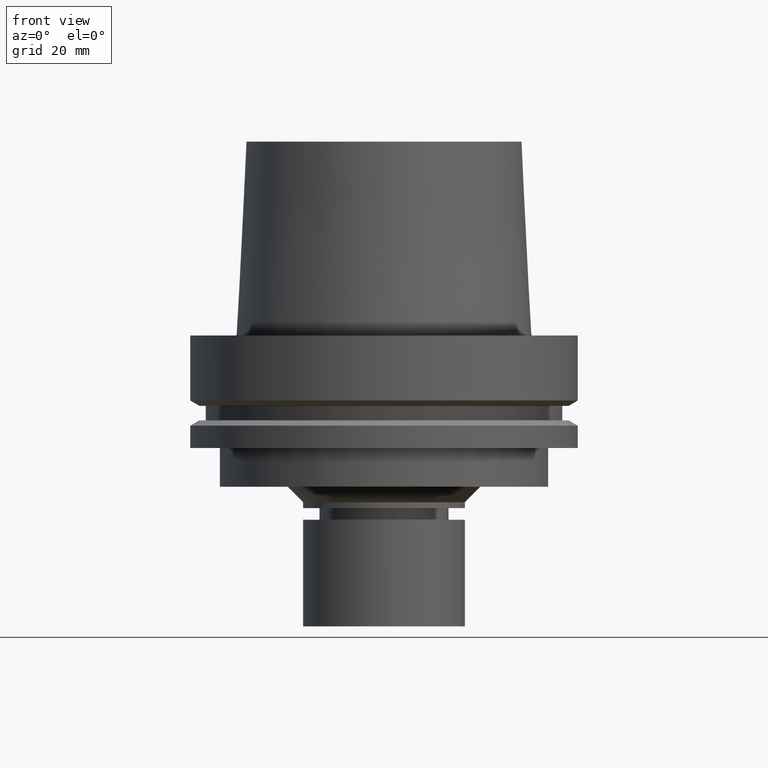
[diagram: clean part render]
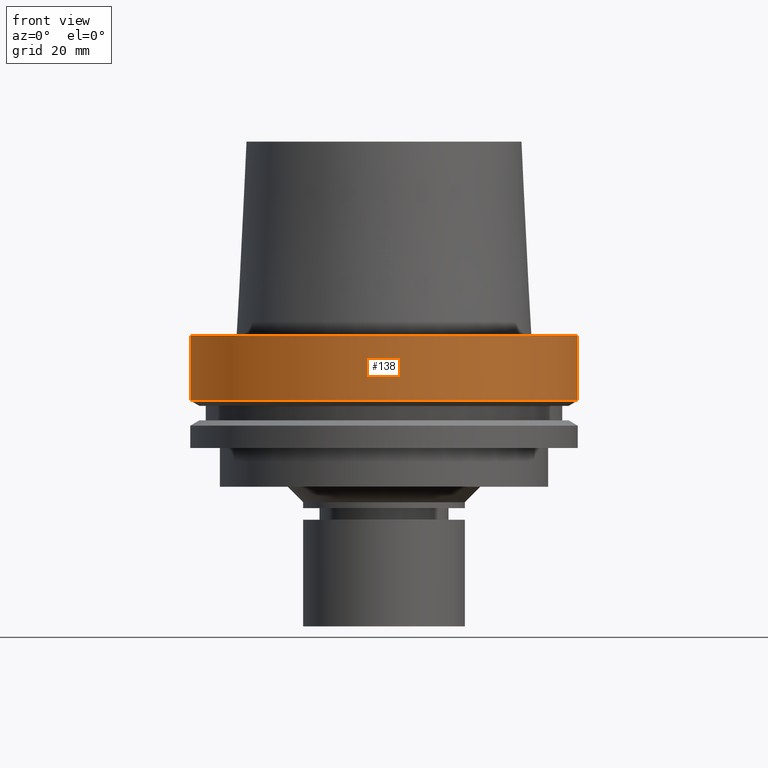
[diagram: same view with one face highlighted and labeled with its STEP entity id]
A machine part, front view. The second image highlights one B-rep face of the part: STEP entity #138.
In plain terms, the highlighted cylindrical surface (bore or boss wall) has radius 50 mm, axis along (0, 0, -1).
Its self-contained STEP definition (entity closure, byte-faithful):
#91=EDGE_CURVE('Unnamed[1]',#237,#237,#238,.T.);
#102=EDGE_CURVE('Unnamed[1]',#254,#254,#255,.T.);
#138=ADVANCED_FACE('Unnamed[1]',(#307,#308),#309,.T.);
#237=VERTEX_POINT('',#441);
#238=CIRCLE('',#442,50.0);
#254=VERTEX_POINT('',#463);
#255=CIRCLE('',#464,50.0);
#307=FACE_BOUND('',#529,.T.);
#308=FACE_BOUND('',#530,.T.);
#309=CYLINDRICAL_SURFACE('',#531,50.0);
#441=CARTESIAN_POINT('',(1.0257889421431E-015,50.0,-16.75240474));
#442=AXIS2_PLACEMENT_3D('',#672,#673,#674);
#463=CARTESIAN_POINT('',(-1.81547968506605E-031,50.0,-9.76766004263236E-016));
#464=AXIS2_PLACEMENT_3D('',#690,#691,#692);
#529=EDGE_LOOP('',(#747));
#530=EDGE_LOOP('',(#748));
#531=AXIS2_PLACEMENT_3D('',#749,#750,#751);
#672=CARTESIAN_POINT('',(1.0257889421431E-015,2.05157788428619E-015,-16.75240474));
#673=DIRECTION('',(6.12323399573677E-017,1.22464679914735E-016,-1.0));
#674=DIRECTION('',(-1.23259516440783E-032,1.0,1.22464679914735E-016));
#690=CARTESIAN_POINT('',(0.0,0.0,0.0));
#691=DIRECTION('',(6.12323399573677E-017,1.22464679914735E-016,-1.0));
#692=DIRECTION('',(-1.23259516440783E-032,1.0,1.22464679914735E-016));
#747=ORIENTED_EDGE('',*,*,#91,.F.);
#748=ORIENTED_EDGE('',*,*,#102,.T.);
#749=CARTESIAN_POINT('',(5.12894471071548E-016,1.0257889421431E-015,-8.37620236999999));
#750=DIRECTION('',(6.12323399573677E-017,1.22464679914735E-016,-1.0));
#751=DIRECTION('',(-1.23259516440783E-032,1.0,1.22464679914735E-016));